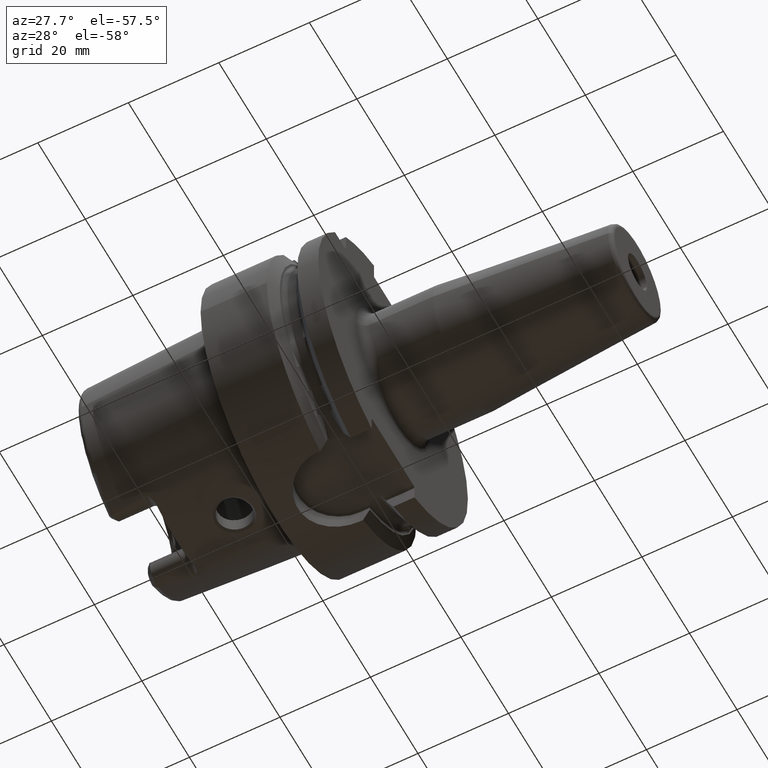
[diagram: clean part render]
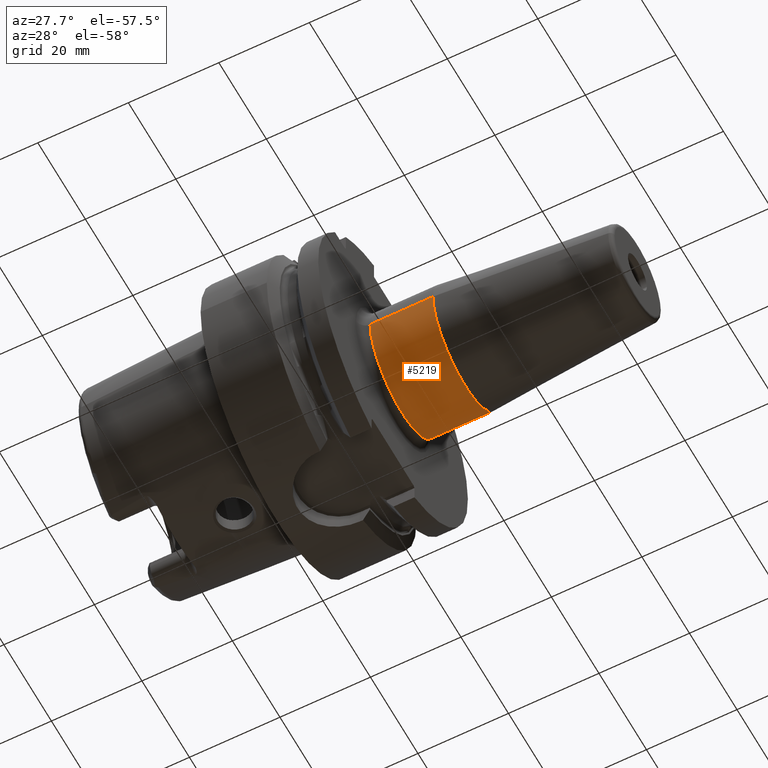
[diagram: same view with one face highlighted and labeled with its STEP entity id]
A machine part, auxiliary view. The second image highlights one B-rep face of the part: STEP entity #5219.
In plain terms, the highlighted cylindrical surface (partial cylindrical patch) has radius 13.5 mm, axis along (1, 0, 0).
Its self-contained STEP definition (entity closure, byte-faithful):
#1976=CARTESIAN_POINT('',(2.8E1,0.E0,0.E0));
#1977=DIRECTION('',(1.E0,0.E0,0.E0));
#1978=DIRECTION('',(0.E0,-1.E0,0.E0));
#1979=AXIS2_PLACEMENT_3D('',#1976,#1977,#1978);
#1981=DIRECTION('',(-1.E0,0.E0,-1.574746400807E-13));
#1982=VECTOR('',#1981,1.388138579148E1);
#1983=CARTESIAN_POINT('',(4.188138579148E1,-1.35E1,0.E0));
#1984=LINE('',#1983,#1982);
#1985=CARTESIAN_POINT('',(4.188138579148E1,0.E0,0.E0));
#1986=DIRECTION('',(-1.E0,0.E0,0.E0));
#1987=DIRECTION('',(0.E0,1.E0,0.E0));
#1988=AXIS2_PLACEMENT_3D('',#1985,#1986,#1987);
#1990=DIRECTION('',(-1.E0,0.E0,1.574498637824E-13));
#1991=VECTOR('',#1990,1.388138579148E1);
#1992=CARTESIAN_POINT('',(4.188138579148E1,1.35E1,0.E0));
#1993=LINE('',#1992,#1991);
#3064=CARTESIAN_POINT('',(4.188138579148E1,1.35E1,0.E0));
#3065=CARTESIAN_POINT('',(4.188138579148E1,-1.35E1,0.E0));
#3066=VERTEX_POINT('',#3064);
#3067=VERTEX_POINT('',#3065);
#3072=CARTESIAN_POINT('',(2.8E1,-1.35E1,0.E0));
#3073=CARTESIAN_POINT('',(2.8E1,1.35E1,0.E0));
#3074=VERTEX_POINT('',#3072);
#3075=VERTEX_POINT('',#3073);
#5207=CARTESIAN_POINT('',(2.33E1,0.E0,0.E0));
#5208=DIRECTION('',(1.E0,0.E0,0.E0));
#5209=DIRECTION('',(0.E0,-1.E0,0.E0));
#5210=AXIS2_PLACEMENT_3D('',#5207,#5208,#5209);
#5211=CYLINDRICAL_SURFACE('',#5210,1.35E1);
#5212=ORIENTED_EDGE('',*,*,#5172,.F.);
#5213=ORIENTED_EDGE('',*,*,#5202,.F.);
#5215=ORIENTED_EDGE('',*,*,#5214,.F.);
#5216=ORIENTED_EDGE('',*,*,#5198,.T.);
#5217=EDGE_LOOP('',(#5212,#5213,#5215,#5216));
#5218=FACE_OUTER_BOUND('',#5217,.F.);
#5219=ADVANCED_FACE('',(#5218),#5211,.T.);
#1980=CIRCLE('',#1979,1.35E1);
#1989=CIRCLE('',#1988,1.35E1);
#5172=EDGE_CURVE('',#3074,#3075,#1980,.T.);
#5198=EDGE_CURVE('',#3066,#3075,#1993,.T.);
#5202=EDGE_CURVE('',#3067,#3074,#1984,.T.);
#5214=EDGE_CURVE('',#3066,#3067,#1989,.T.);